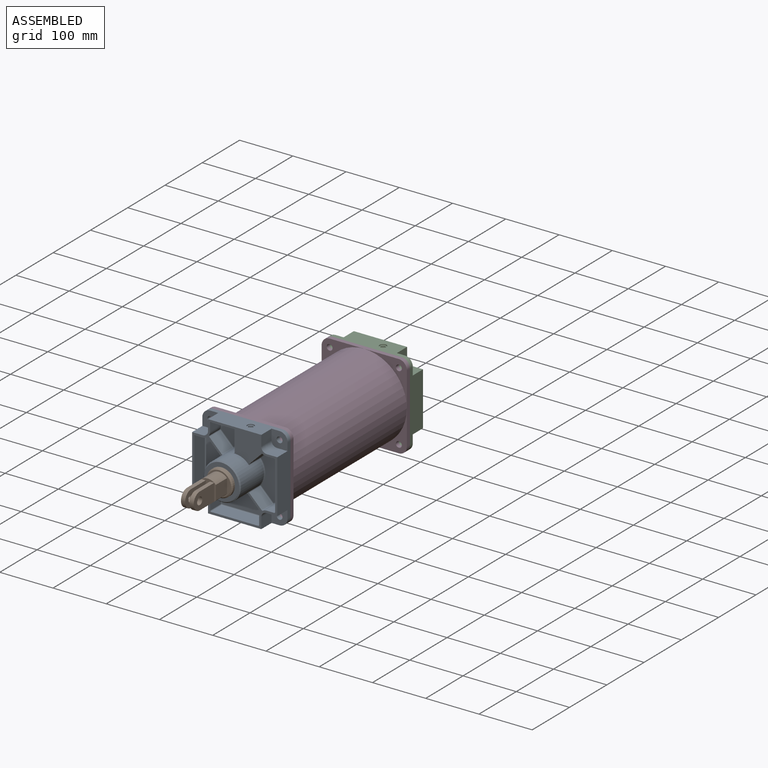
[diagram: assembled view]
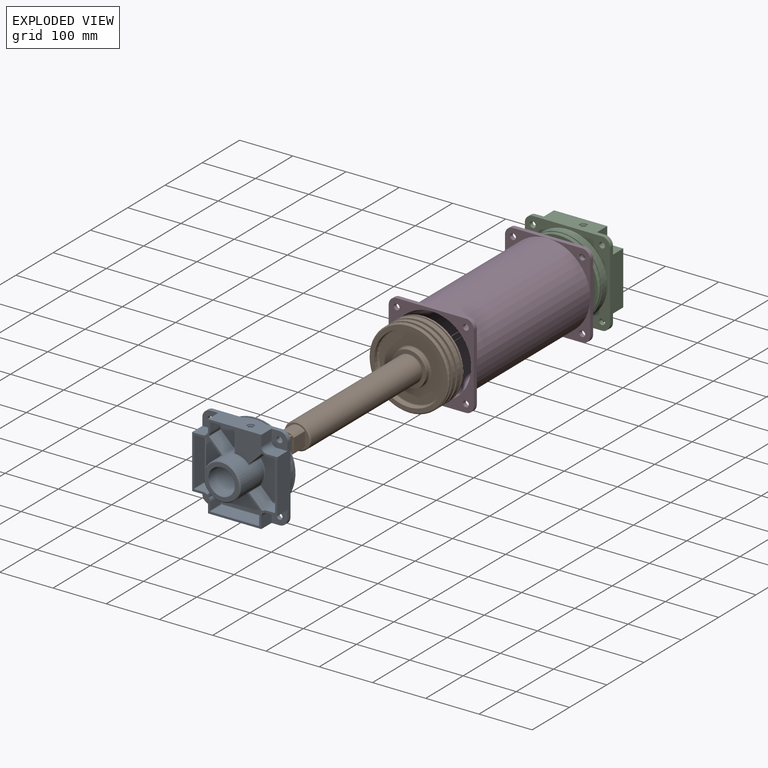
[diagram: exploded view]
GUIDED TOUR — MATED ASSEMBLY WITH SUBASSEMBLIES (Onshape document 777a1556edca3f2de5fb59df, AutoMate assembly 777a1556edca3f2de5fb59df_df7d17a8a97ad3eda7b4dfc3_3cbf7c498c8bca99a419a9bf_default)

This assembly has 5 component occurrences arranged in 4 top-level units: 3 individual components plus 1 subassembly (S0). The tour has two levels: first the top level, where each subassembly is treated as one rigid unit; then each subassembly is toured internally in its own section (nesting deeper than one subassembly level is flattened into its subassembly's section).

Components are labeled P0..P4 across the whole record; subassembly units are labeled S0..S0. A mate is a constraint between two units; its type names the relative motion it leaves free:
  FASTENED — locks the two components together rigidly (no relative motion),
  SLIDER — leaves translation along the listed axis free.
Axis/direction vectors are unit vectors and 'through' points are millimeter coordinates, both in the assembly's world frame.

TOP-LEVEL MATES (between units; each subassembly's internal mates are listed in its own section)
  1. FASTENED "Fastened 1": P0 <-> P3, direction (0.000, 1.000, 0.000) through (65.00, -320.00, 65.00) mm
  2. FASTENED "Fastened 2": P2 <-> P3, direction (0.000, 1.000, 0.000) through (65.00, 0.00, 65.00) mm
  3. SLIDER "Slider 1": P0 <-> S0, axis (0.000, 1.000, 0.000) through (0.00, -297.50, 0.00) mm

TOP-LEVEL ASSEMBLY ORDER
  1. P0 — the base component [order heuristic]
  2. S0 [order heuristic]
  3. P3 [order heuristic]
  4. P2 [order heuristic]
Order-tag legend:
  [order heuristic] — this assembly is geometrically interlocked (no collision-free removal order exists), so components are listed in mate-graph order; insertion feasibility is not verified.

Of the 5 component occurrences, 2 carry the full construction recipe — the FeatureScript program that regenerates the part's solid from scratch; the rest are supplied as boundary geometry only. Each toured unit is shown spotlighted twice — assembled, then exploded with a leader line back to its socket (green = recipe-attached component, orange = geometry-only, blue = subassembly unit; the rest desaturated gray).
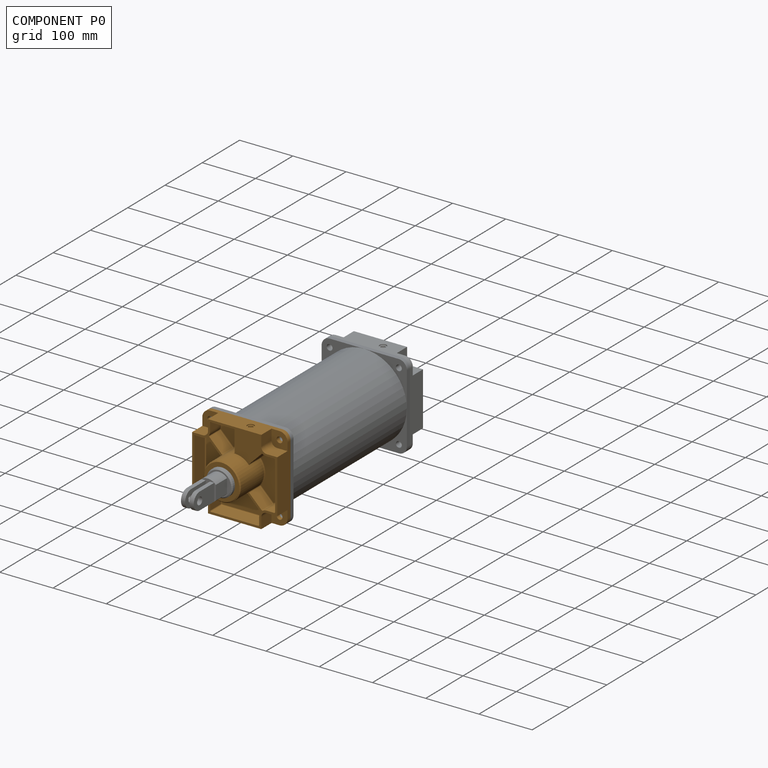
[diagram: component P0 — assembled]
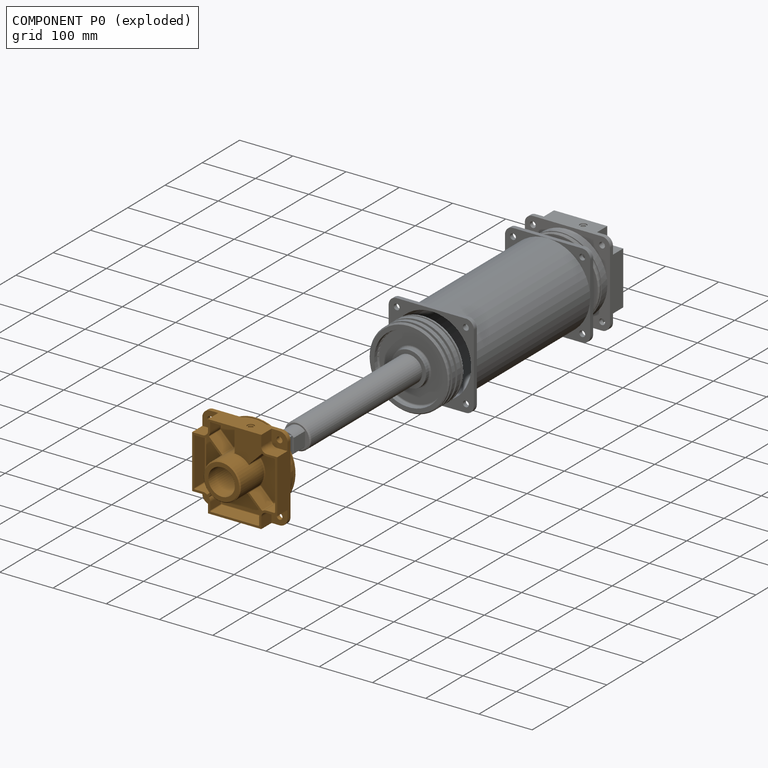
[diagram: component P0 — exploded]
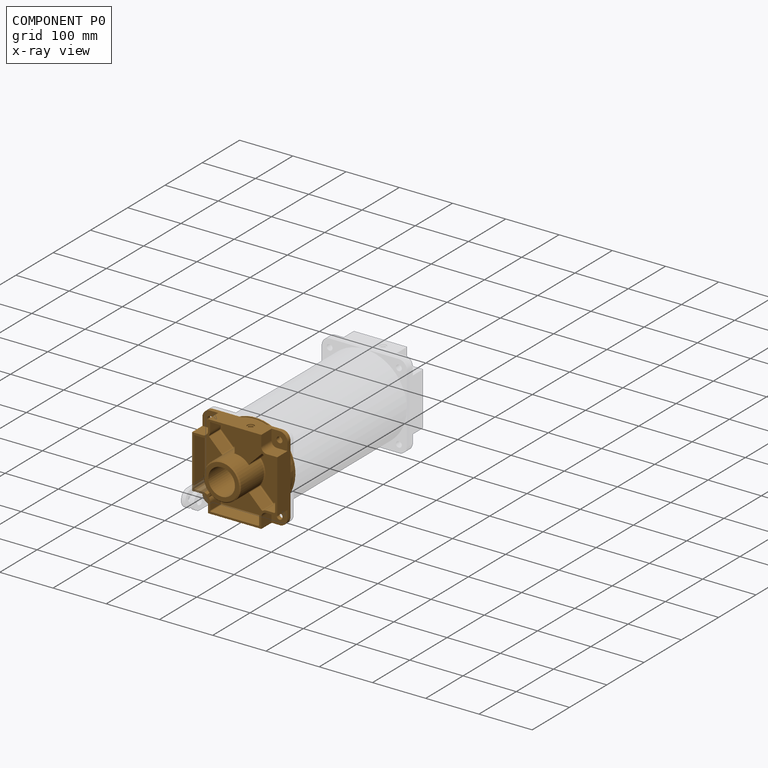
[diagram: component P0 — x-ray view]
COMPONENT P0 — geometry summary (no construction recipe available for this part):
  bounding box: 160.0 x 160.0 x 93.0 mm
  B-rep topology: 1 solid, 152 faces, 744 edges
  volume: 750797 mm^3 (32% of its bounding box)
Held by: FASTENED mate "Fastened 1" to P3; SLIDER mate "Slider 1" to P1.
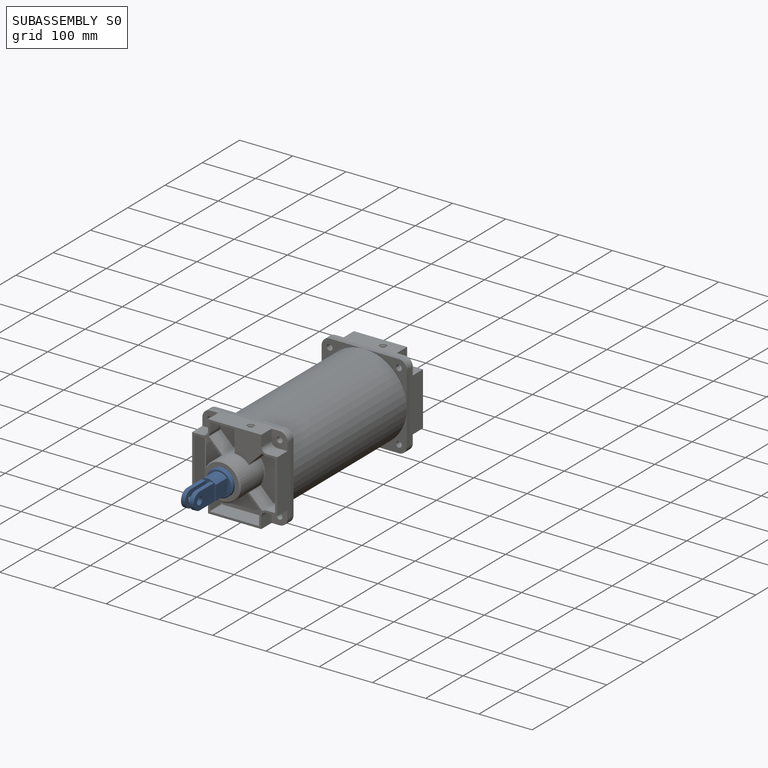
[diagram: subassembly S0 — assembled]
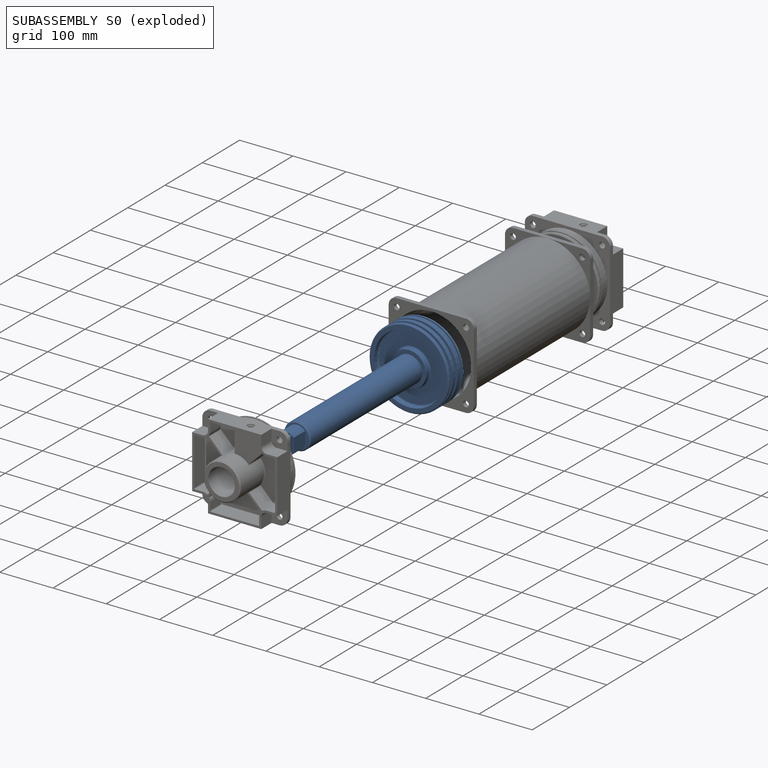
[diagram: subassembly S0 — exploded]
SUBASSEMBLY S0 — 2 components (P1, P4), of which 1 recipe-attached; toured below.
Held by: SLIDER mate "Slider 1" to P0.
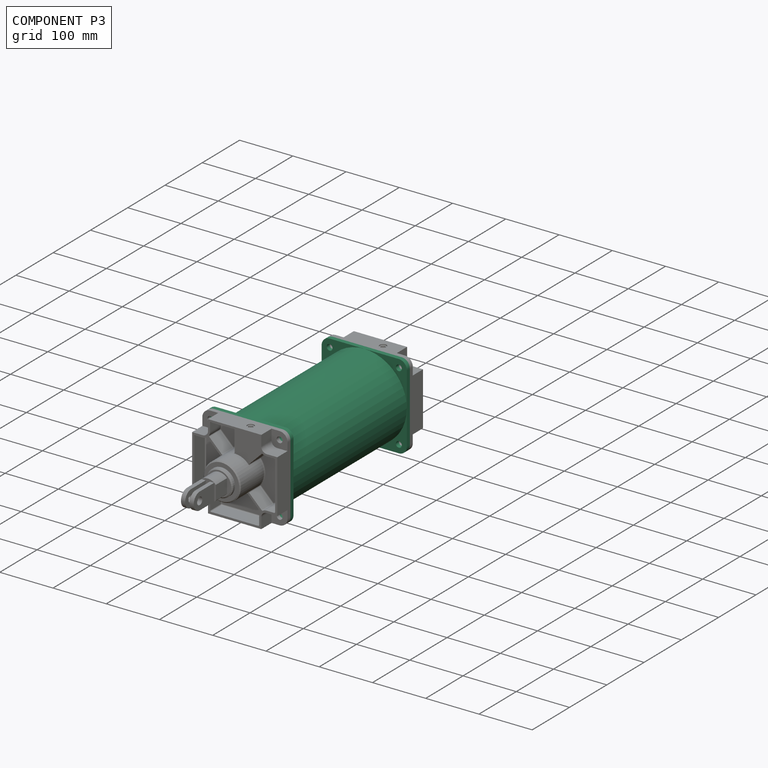
[diagram: component P3 — assembled]
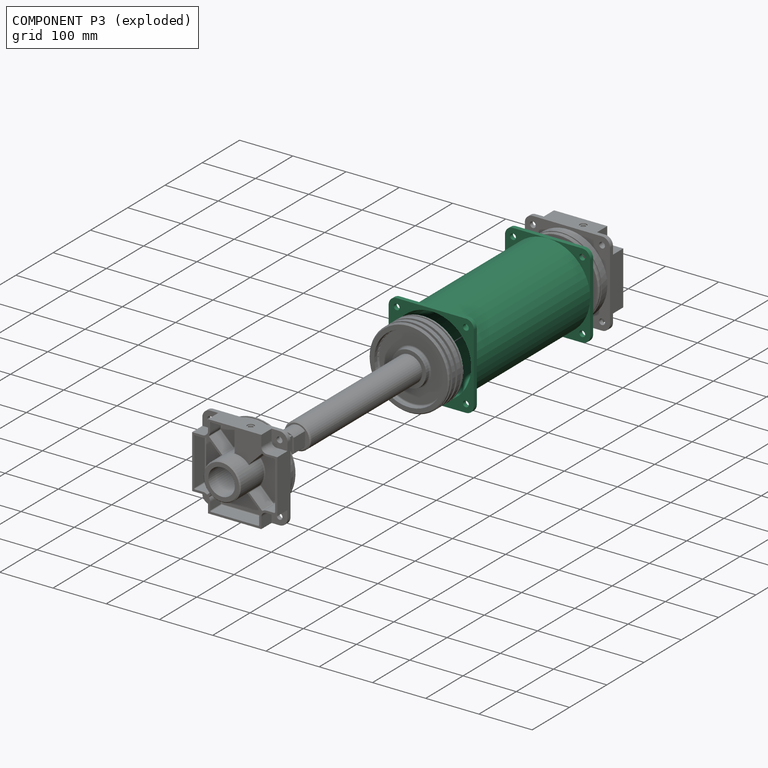
[diagram: component P3 — exploded]
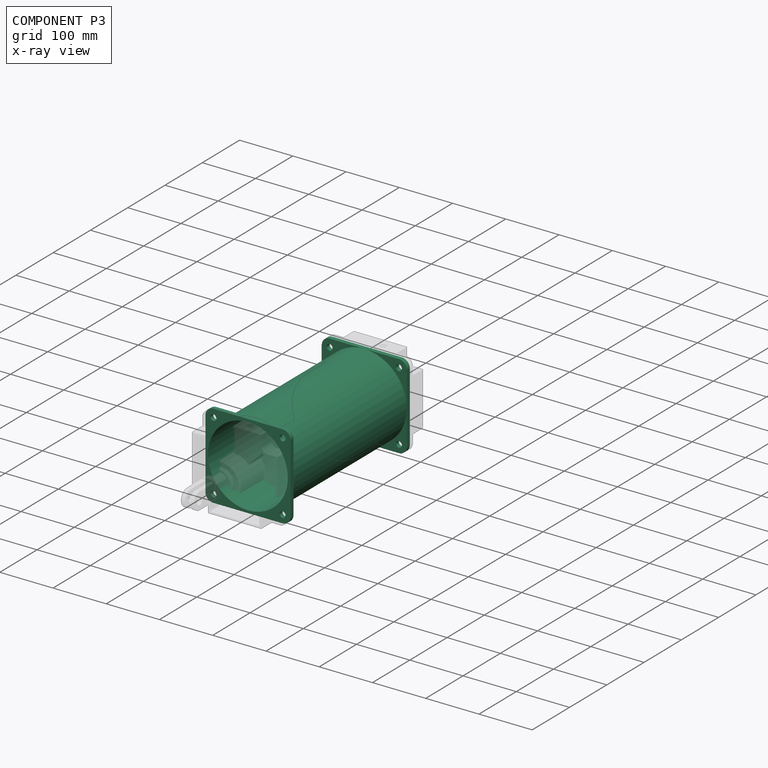
[diagram: component P3 — x-ray view]
COMPONENT P3 — recipe-attached (CADFS 00896043, mesh-verified: the recipe's output STEP matches this component's geometry to below the mesh-comparison resolution (tessellation chordal tolerance ~0.588 mm)).
Held by: FASTENED mate "Fastened 1" to P0; FASTENED mate "Fastened 2" to P2.
Construction recipe (FeatureScript — the CAD program that rebuilds this solid; sketch coordinates are in the units given by the * unit suffixes, e.g. mm):

FeatureScript 1511;
import(path : "onshape/std/geometry.fs", version : "1511.0");
import(path : "onshape/std/common.fs", version : "1511.0");
const mm = millimeter;
const VERTEX = EntityType.VERTEX;
const EDGE = EntityType.EDGE;
const FACE = EntityType.FACE;
const BODY = EntityType.BODY;
function v(x, y){return vector(x, y);}
function OD(order){return orderDisambiguation(order);}
function OSD(set){return originalSetDisambiguation(set);}
function TD(topology){return topologyDisambiguation(topology);}
function TDD(query){return trueDependencyDisambiguation(query);}
function sQuery(a, b, c) {return sketchEntityQuery(a, b, c);}

annotation { "Feature Type Name" : "Feature", "Feature Type Description" : "" }
export const myFeature = defineFeature(function(context is Context, id is Id, definition is map)
    precondition{}
    {
        {
            var Q0;
            Q0=qCreatedBy(makeId("Front.planeOp"),FACE);
            cPlane(context, id + "F0", {"entities" : qUnion([Q0]), "cplaneType" : CPlaneType.OFFSET, "offset" : 320 * mm, "width" : 150 * mm, "height" : 150 * mm});
        }
        {
            var Q0;
            Q0=qCreatedBy(makeId("Front.planeOp"),FACE);
            var sketch = newSketch(context, id + "F1", { "sketchPlane" : qUnion([Q0])});
            skLineSegment(sketch, "E0.bottom", {"start": v(65, -80) * mm, "end": v(-65, -80) * mm});
            skLineSegment(sketch, "E0.top", {"start": v(65, 80) * mm, "end": v(-65, 80) * mm});
            skLineSegment(sketch, "E0.left", {"start": v(80, -65) * mm, "end": v(80, 65) * mm});
            skLineSegment(sketch, "E0.right", {"start": v(-80, -65) * mm, "end": v(-80, 65) * mm});
            skPoint(sketch, "E0.middle", {"position": v(0, 0) * mm});
            skPoint(sketch, "E1.visualSharp", {"position": v(-80, 80) * mm});
            skArc(sketch, "E1.filletArc", {"start": v(-65, 80) * mm, "mid": v(-75.6, 75.6) * mm, "end": v(-80, 65) * mm});
            skPoint(sketch, "E2.visualSharp", {"position": v(80, 80) * mm});
            skArc(sketch, "E2.filletArc", {"start": v(80, 65) * mm, "mid": v(75.6, 75.6) * mm, "end": v(65, 80) * mm});
            skPoint(sketch, "E3.visualSharp", {"position": v(80, -80) * mm});
            skArc(sketch, "E3.filletArc", {"start": v(65, -80) * mm, "mid": v(75.6, -75.6) * mm, "end": v(80, -65) * mm});
            skPoint(sketch, "E4.visualSharp", {"position": v(-80, -80) * mm});
            skArc(sketch, "E4.filletArc", {"start": v(-80, -65) * mm, "mid": v(-75.6, -75.6) * mm, "end": v(-65, -80) * mm});
            skCircle(sketch, "E5", {"center": v(0, 0) * mm, "radius": 80 * mm});
            skCircle(sketch, "E6", {"center": v(0, 0) * mm, "radius": 75 * mm});
            skCircle(sketch, "E7", {"center": v(65, 65) * mm, "radius": 5.5 * mm});
            skCircle(sketch, "E8", {"center": v(-65, 65) * mm, "radius": 5.5 * mm});
            skCircle(sketch, "E9", {"center": v(65, -65) * mm, "radius": 5.5 * mm});
            skCircle(sketch, "E10", {"center": v(-65, -65) * mm, "radius": 5.5 * mm});
            skSolve(sketch);
        }
        {
            var Q0;
            Q0 = qSketchRegion(id + "F1", true);
            extrude(context, id + "F2", {"entities" : qUnion([Q0]), "depth" : 8 * mm, "offsetDistance" : 25 * mm});
        }
        {
            var Q0;
            Q0=makeQuery(id+"F1.imprint","IMPRINT",FACE,{"disambiguationData":[TD([[makeQuery(id+"F1.imprint","IMPRINT",EDGE,{"derivedFrom":sQuery(id+"F1.wireOp",EDGE,"E6")}),-1.0]])]});
            var Q1;
            Q1=qCreatedBy(id+"F0.planeOp",FACE);
            extrude(context, id + "F3", {"entities" : qUnion([Q0]), "operationType" : NewBodyOperationType.ADD, "endBound" : BoundingType.UP_TO_SURFACE, "depth" : 25 * mm, "endBoundEntityFace" : qUnion([Q1]), "offsetDistance" : 25 * mm});
        }
        {
            var Q0;
            {var subQ0=sQuery(id+"F1.wireOp",EDGE,"E3.filletArc");Q0=makeQuery(id+"F1.imprint","IMPRINT",FACE,{"disambiguationData":[TD([[makeQuery(id+"F1.imprint","IMPRINT",EDGE,{"derivedFrom":subQ0}),1.0]])]});}
            var Q1;
            {var subQ0=sQuery(id+"F1.wireOp",EDGE,"E4.filletArc");Q1=makeQuery(id+"F1.imprint","IMPRINT",FACE,{"disambiguationData":[TD([[makeQuery(id+"F1.imprint","IMPRINT",EDGE,{"derivedFrom":subQ0}),1.0]])]});}
            var Q2;
            {var subQ0=sQuery(id+"F1.wireOp",EDGE,"E2.filletArc");Q2=makeQuery(id+"F1.imprint","IMPRINT",FACE,{"disambiguationData":[TD([[makeQuery(id+"F1.imprint","IMPRINT",EDGE,{"derivedFrom":subQ0}),1.0]])]});}
            var Q3;
            {var subQ0=sQuery(id+"F1.wireOp",EDGE,"E1.filletArc");Q3=makeQuery(id+"F1.imprint","IMPRINT",FACE,{"disambiguationData":[TD([[makeQuery(id+"F1.imprint","IMPRINT",EDGE,{"derivedFrom":subQ0}),1.0]])]});}
            var Q4;
            Q4=qCreatedBy(id+"F0.planeOp",FACE);
            var Q5;
            Q5=qCreatedBy(id+"F0.planeOp",FACE);
            extrude(context, id + "F4", {"entities" : qUnion([Q0, Q1, Q2, Q3]), "operationType" : NewBodyOperationType.ADD, "endBound" : BoundingType.UP_TO_SURFACE, "depth" : 25 * mm, "endBoundEntityFace" : qUnion([Q4]), "offsetDistance" : 25 * mm, "hasSecondDirection" : true, "secondDirectionBound" : SecondDirectionBoundingType.UP_TO_SURFACE, "secondDirectionOppositeDirection" : false, "secondDirectionDepth" : 25 * mm, "secondDirectionBoundEntityFace" : qUnion([Q5]), "hasSecondDirectionOffset" : true, "secondDirectionOffsetDistance" : 8 * mm});
        }
    });
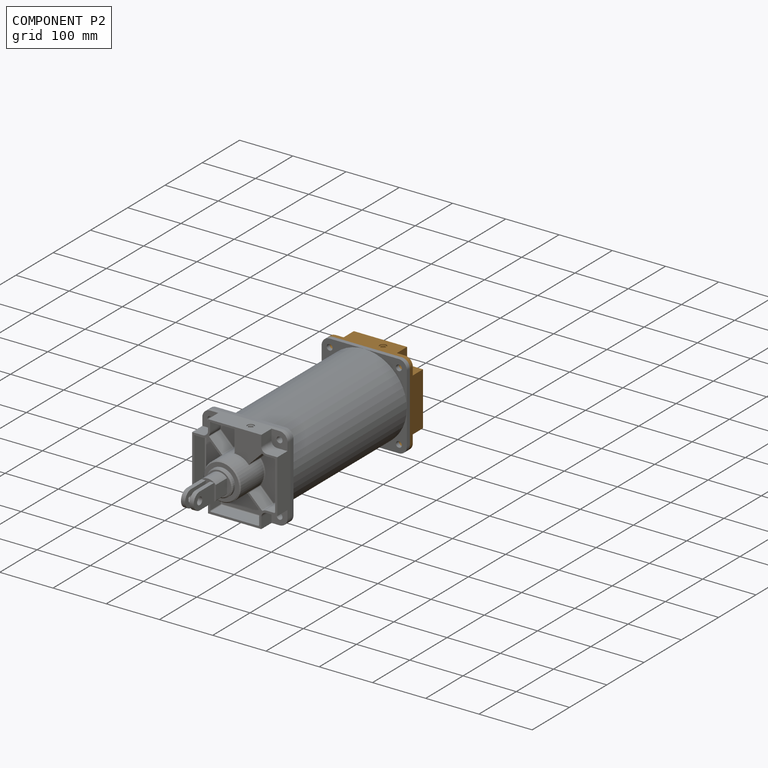
[diagram: component P2 — assembled]
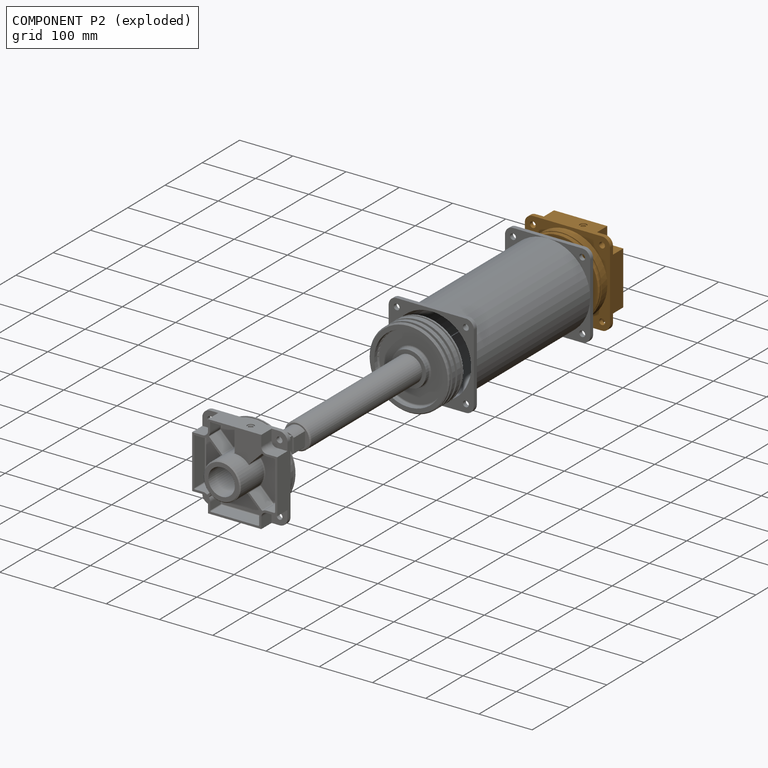
[diagram: component P2 — exploded]
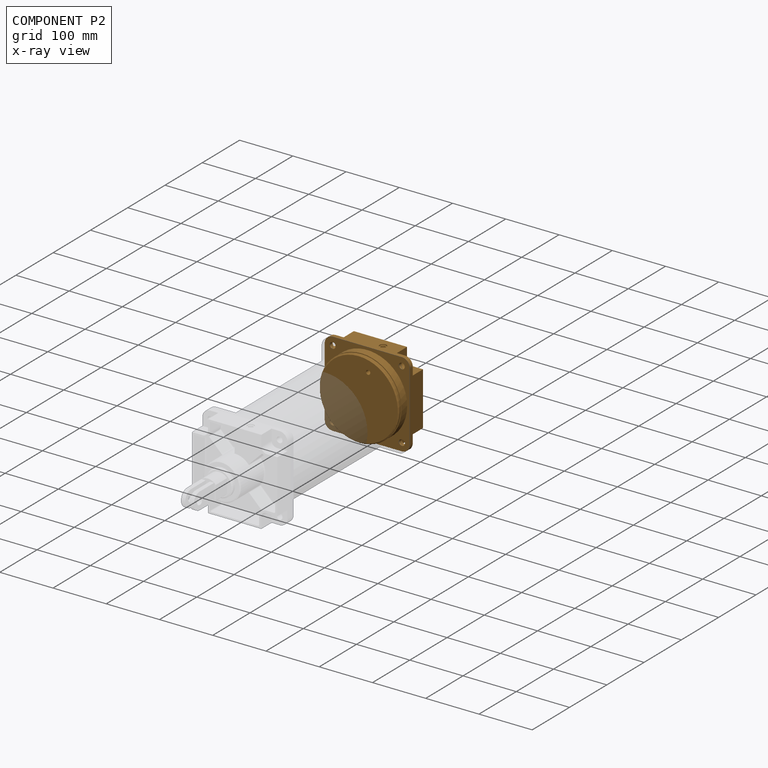
[diagram: component P2 — x-ray view]
COMPONENT P2 — geometry summary (no construction recipe available for this part):
  bounding box: 160.0 x 160.0 x 58.0 mm
  B-rep topology: 1 solid, 50 faces, 269 edges
  volume: 1197123 mm^3 (81% of its bounding box)
Held by: FASTENED mate "Fastened 2" to P3.
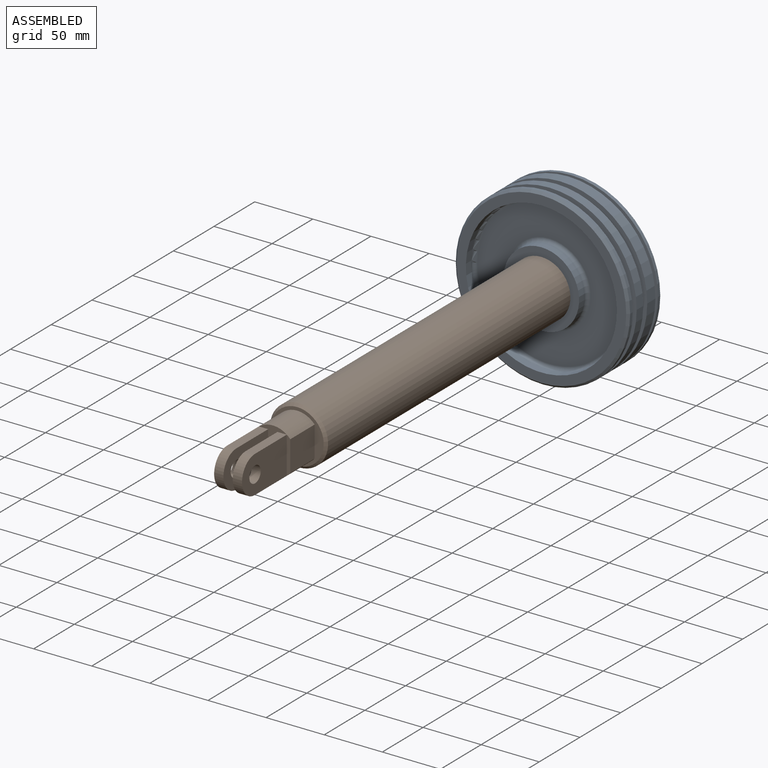
[diagram: subassembly S0 — assembled view]
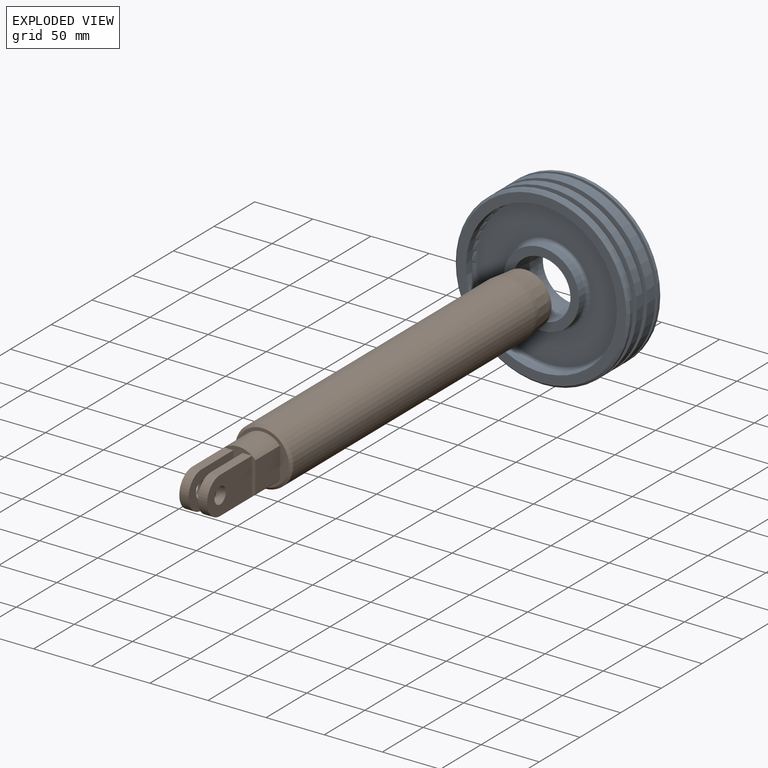
[diagram: subassembly S0 — exploded view]
SUBASSEMBLY S0 TOUR — 2 components, shown here in isolation at its own camera.

INTERNAL MATES
  1. FASTENED "Fastened 1": P1 <-> P4, direction (0.000, -1.000, 0.000) through (0.00, -97.50, 0.00) mm
  2. FASTENED "Fastened 1": P1 <-> P4, direction (0.000, -1.000, 0.000) through (0.00, -97.50, 0.00) mm

ASSEMBLY ORDER (within the subassembly)
  1. P1 — the base component [order heuristic]
  2. P4 [order heuristic]
Order-tag legend:
  [order heuristic] — this assembly is geometrically interlocked (no collision-free removal order exists), so components are listed in mate-graph order; insertion feasibility is not verified.
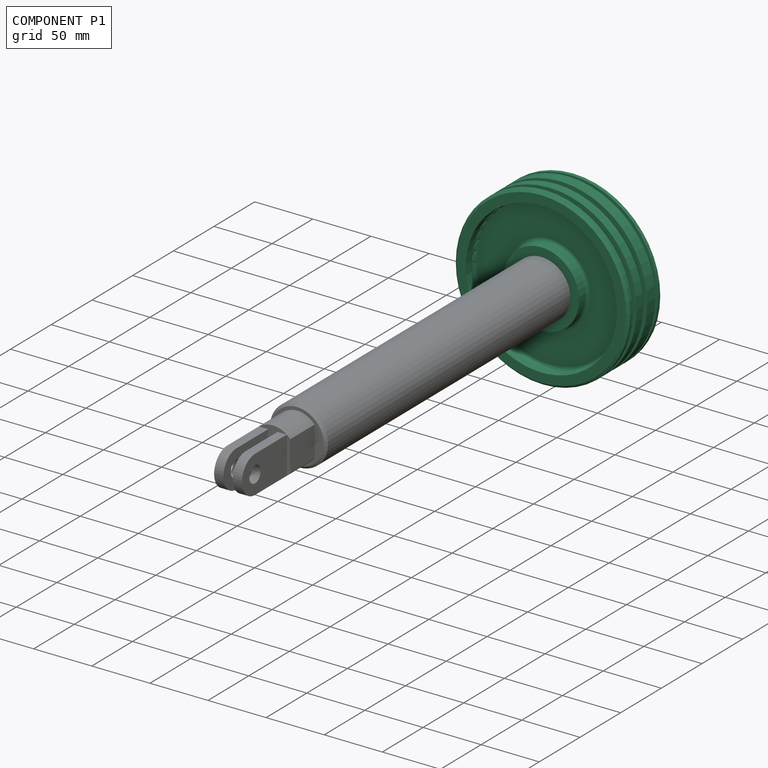
[diagram: component P1 — assembled]
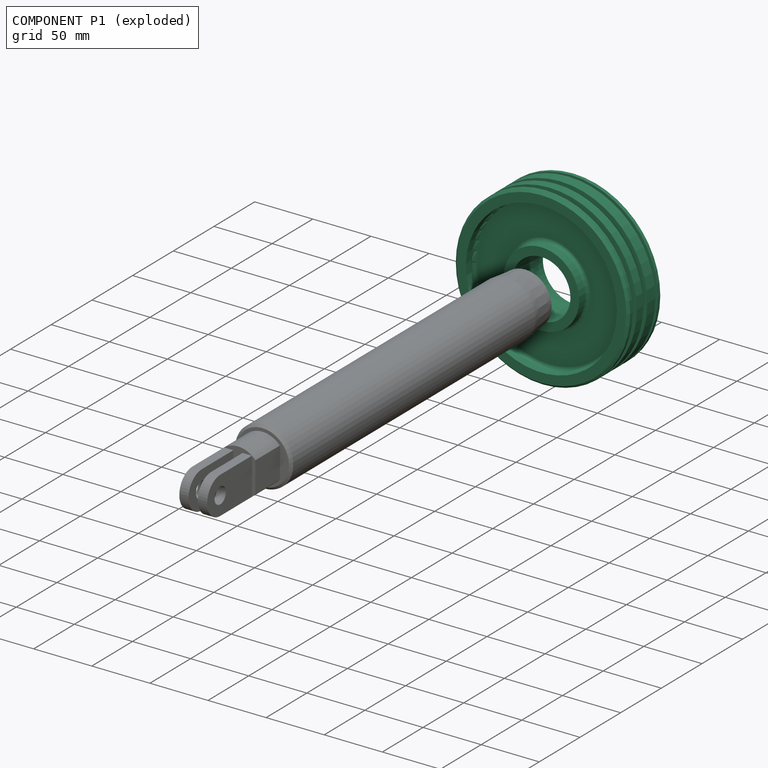
[diagram: component P1 — exploded]
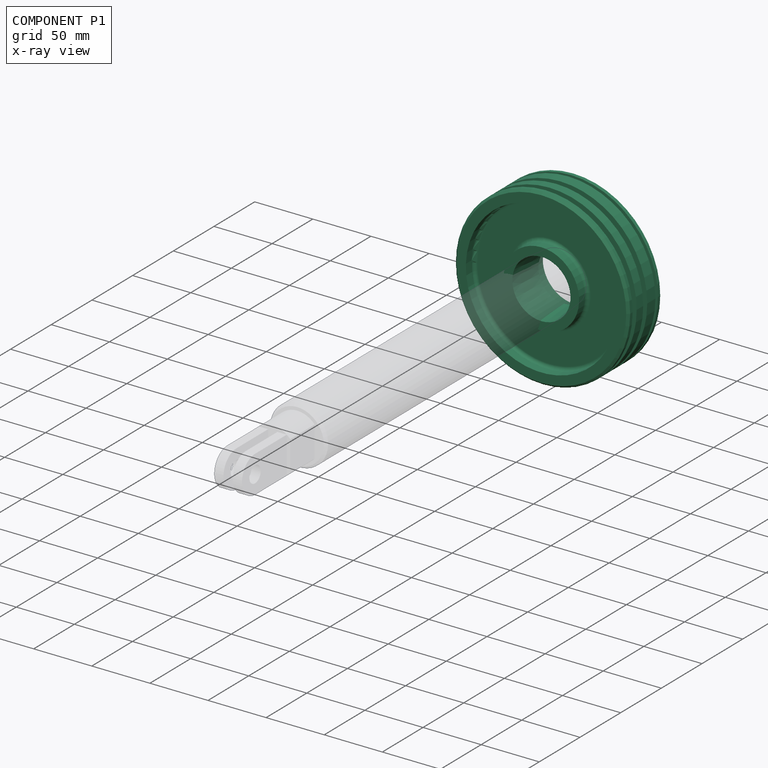
[diagram: component P1 — x-ray view]
COMPONENT P1 — recipe-attached (CADFS 00896045, mesh-verified: the recipe's output STEP matches this component's geometry to below the mesh-comparison resolution (tessellation chordal tolerance ~0.324 mm)).
Held by: FASTENED mate "Fastened 1" to P4; FASTENED mate "Fastened 1" to P4.
Construction recipe (FeatureScript — the CAD program that rebuilds this solid; sketch coordinates are in the units given by the * unit suffixes, e.g. mm):

FeatureScript 1511;
import(path : "onshape/std/geometry.fs", version : "1511.0");
import(path : "onshape/std/common.fs", version : "1511.0");
const mm = millimeter;
const VERTEX = EntityType.VERTEX;
const EDGE = EntityType.EDGE;
const FACE = EntityType.FACE;
const BODY = EntityType.BODY;
function v(x, y){return vector(x, y);}
function OD(order){return orderDisambiguation(order);}
function OSD(set){return originalSetDisambiguation(set);}
function TD(topology){return topologyDisambiguation(topology);}
function TDD(query){return trueDependencyDisambiguation(query);}
function sQuery(a, b, c) {return sketchEntityQuery(a, b, c);}

annotation { "Feature Type Name" : "Feature", "Feature Type Description" : "" }
export const myFeature = defineFeature(function(context is Context, id is Id, definition is map)
    precondition{}
    {
        {
            var Q0;
            Q0=qCreatedBy(makeId("Front.planeOp"),FACE);
            var sketch = newSketch(context, id + "F0", { "sketchPlane" : qUnion([Q0])});
            skLineSegment(sketch, "E0", {"start": v(0, 27.5) * mm, "end": v(13, 27.5) * mm});
            skLineSegment(sketch, "E1", {"start": v(13, 27.5) * mm, "end": v(13, 22.2) * mm});
            skLineSegment(sketch, "E2", {"start": v(13, 22.2) * mm, "end": v(41, 25) * mm});
            skLineSegment(sketch, "E3", {"start": v(41, 25) * mm, "end": v(41, 32.5) * mm});
            skLineSegment(sketch, "E4", {"start": v(41, 32.5) * mm, "end": v(34, 32.5) * mm});
            skLineSegment(sketch, "E5", {"start": v(31, 35.5) * mm, "end": v(31, 62) * mm});
            skLineSegment(sketch, "E6", {"start": v(34, 65) * mm, "end": v(41, 65) * mm});
            skLineSegment(sketch, "E7", {"start": v(41, 65) * mm, "end": v(41, 75) * mm});
            skLineSegment(sketch, "E8", {"start": v(41, 75) * mm, "end": v(36, 75) * mm});
            skLineSegment(sketch, "E9", {"start": v(36, 75) * mm, "end": v(36, 70) * mm});
            skLineSegment(sketch, "E10", {"start": v(36, 70) * mm, "end": v(31, 70) * mm});
            skLineSegment(sketch, "E11", {"start": v(31, 70) * mm, "end": v(31, 75) * mm});
            skLineSegment(sketch, "E12", {"start": v(31, 75) * mm, "end": v(23, 75) * mm});
            skLineSegment(sketch, "E13", {"start": v(23, 75) * mm, "end": v(23, 70) * mm});
            skLineSegment(sketch, "E14", {"start": v(23, 70) * mm, "end": v(18, 70) * mm});
            skLineSegment(sketch, "E15", {"start": v(18, 70) * mm, "end": v(18, 75) * mm});
            skLineSegment(sketch, "E16", {"start": v(18, 75) * mm, "end": v(8, 75) * mm});
            skLineSegment(sketch, "E17", {"start": v(8, 75) * mm, "end": v(8, 70) * mm});
            skLineSegment(sketch, "E18", {"start": v(8, 70) * mm, "end": v(5, 70) * mm});
            skLineSegment(sketch, "E19", {"start": v(5, 70) * mm, "end": v(5, 75) * mm});
            skLineSegment(sketch, "E20", {"start": v(5, 75) * mm, "end": v(0, 75) * mm});
            skLineSegment(sketch, "E21", {"start": v(0, 75) * mm, "end": v(0, 65) * mm});
            skLineSegment(sketch, "E22", {"start": v(0, 65) * mm, "end": v(7, 65) * mm});
            skLineSegment(sketch, "E23", {"start": v(10, 62) * mm, "end": v(10, 35.5) * mm});
            skLineSegment(sketch, "E24", {"start": v(7, 32.5) * mm, "end": v(0, 32.5) * mm});
            skLineSegment(sketch, "E25", {"start": v(0, 32.5) * mm, "end": v(0, 27.5) * mm});
            skPoint(sketch, "E26.visualSharp", {"position": v(10, 65) * mm});
            skArc(sketch, "E26.filletArc", {"start": v(10, 62) * mm, "mid": v(9.12, 64.12) * mm, "end": v(7, 65) * mm});
            skPoint(sketch, "E27.visualSharp", {"position": v(10, 32.5) * mm});
            skArc(sketch, "E27.filletArc", {"start": v(7, 32.5) * mm, "mid": v(9.12, 33.38) * mm, "end": v(10, 35.5) * mm});
            skPoint(sketch, "E28.visualSharp", {"position": v(31, 32.5) * mm});
            skArc(sketch, "E28.filletArc", {"start": v(31, 35.5) * mm, "mid": v(31.88, 33.38) * mm, "end": v(34, 32.5) * mm});
            skPoint(sketch, "E29.visualSharp", {"position": v(31, 65) * mm});
            skArc(sketch, "E29.filletArc", {"start": v(34, 65) * mm, "mid": v(31.88, 64.12) * mm, "end": v(31, 62) * mm});
            skLineSegment(sketch, "E30", {"start": v(0, 0) * mm, "end": v(41, 0) * mm, "construction": true});
            skSolve(sketch);
        }
        {
            var Q0;
            Q0=makeQuery(id+"F0.imprint","IMPRINT",FACE,{"disambiguationData":[TD([[makeQuery(id+"F0.imprint","IMPRINT",EDGE,{"derivedFrom":sQuery(id+"F0.wireOp",EDGE,"E0")}),1.0]])]});
            var Q1;
            Q1=sQuery(id+"F0.wireOp",EDGE,"E30");
            revolve(context, id + "F1", {"surfaceOperationType" : NewSurfaceOperationType.NEW, "entities" : qUnion([Q0]), "axis" : qUnion([Q1]), "revolveType" : RevolveType.FULL});
        }
        {
            var Q0;
            Q0=makeQuery(id+"F1.opRevolve","SWEPT_EDGE",EDGE,{"disambiguationData":[OSD([sQuery(id+"F0.wireOp",EDGE,"E7"),sQuery(id+"F0.wireOp",EDGE,"E8")])]});
            var Q1;
            Q1=makeQuery(id+"F1.opRevolve","SWEPT_EDGE",EDGE,{"disambiguationData":[OSD([sQuery(id+"F0.wireOp",EDGE,"E20"),sQuery(id+"F0.wireOp",EDGE,"E21")])]});
            chamfer(context, id + "F2", {"entities" : qUnion([Q0, Q1]), "width" : 2 * mm, "tangentPropagation" : true});
        }
    });
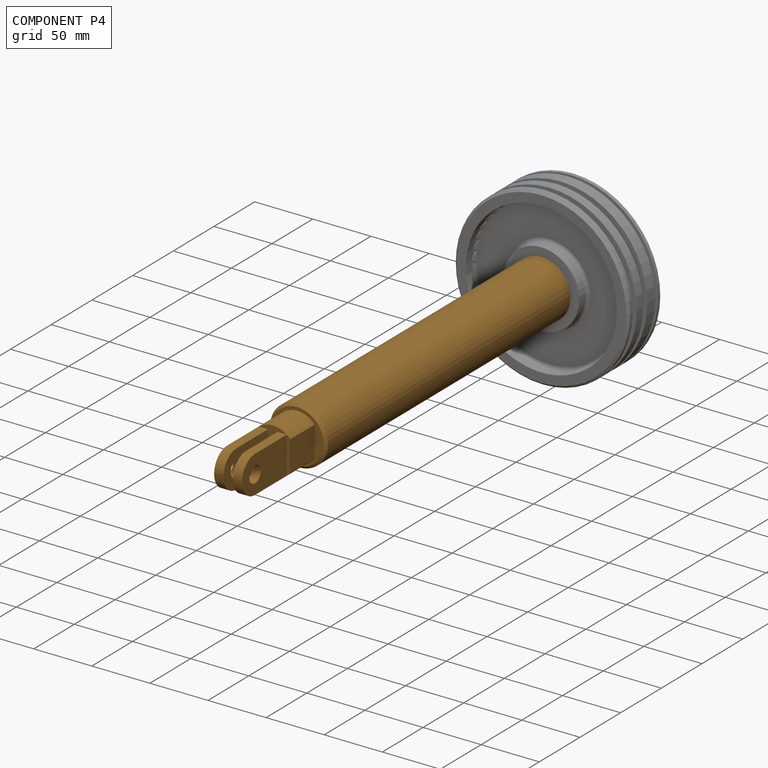
[diagram: component P4 — assembled]
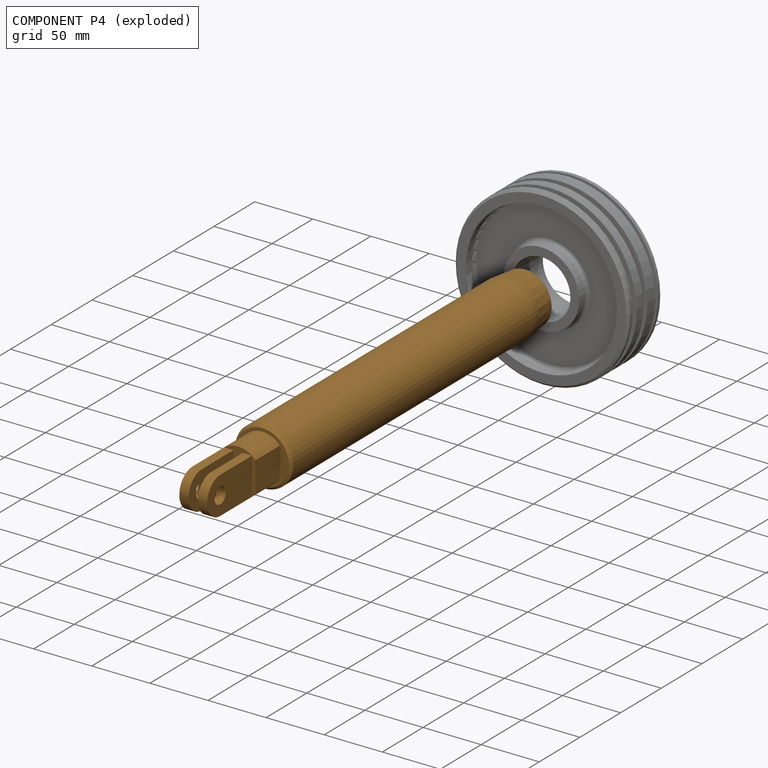
[diagram: component P4 — exploded]
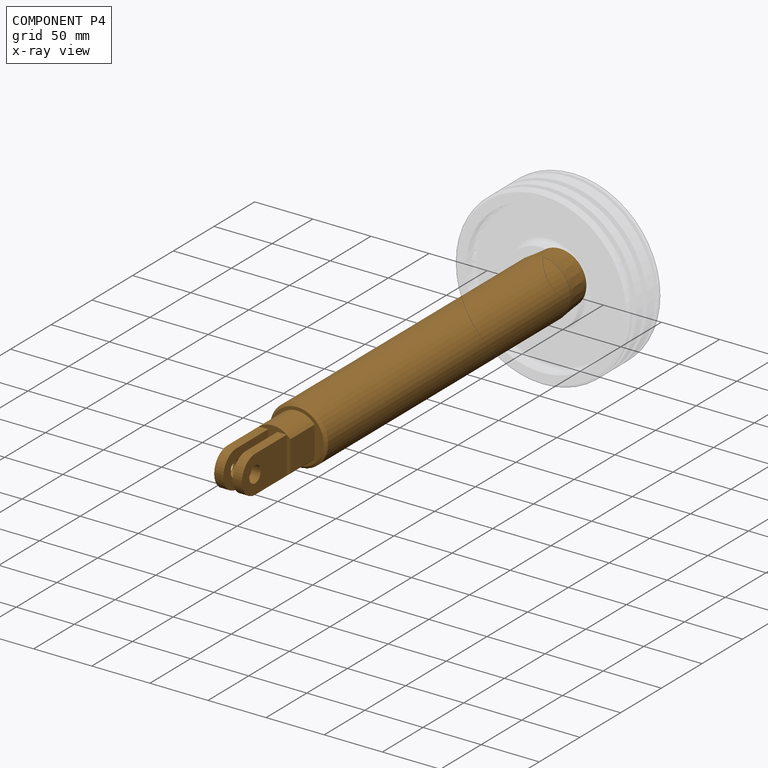
[diagram: component P4 — x-ray view]
COMPONENT P4 — geometry summary (no construction recipe available for this part):
  bounding box: 410.0 x 50.0 x 50.0 mm
  B-rep topology: 1 solid, 28 faces, 129 edges
  volume: 687470 mm^3 (67% of its bounding box)
  symmetry: 2-fold rotationally symmetric about the x axis; mirror-symmetric across its y mid-plane, z mid-plane
Held by: FASTENED mate "Fastened 1" to P1; FASTENED mate "Fastened 1" to P1.
PROVENANCE & LICENSES
Assembly (occurrences, transforms, mates, per-part STEP geometry): AutoMate dataset, Zenodo record 7776208, CC0.
Construction recipes: CADFS (HuggingFace VladPyatov/CADFS, CC-BY-4.0, layered over the ABC dataset), FeatureScript reconstruction programs keyed by ABC model id.
Join: ABC meta listings map ABC model id -> Onshape documentId; within a shared document, parts are matched by geometric signature (bounding-box dims + volume at 0.1% relative tolerance, exact B-rep face/solid counts).
Verification: 2 of this assembly's 5 components carry a recipe attachment, and every attachment is mesh-verified: the CADFS STEP and the AutoMate member STEP were compared as meshes in their shared local frame (symmetric sampled-point-to-mesh distance); worst across the 2 attachments: below the mesh-comparison resolution (tessellation chordal tolerance ~0.588 mm) on a 392 mm part.
Renders: orthographic iso camera (az 35 / el 25); the floor grid conveys scale (grid pitch printed in each image; no ruler). In the exploded view each component is displaced by its stored offset vector: the offsets alone carry the explosion direction (mate normal/axis signs are not orientation cues and do not encode it), and separation distances are assigned per mate-chain, not proportionally to assembly-order depth.
